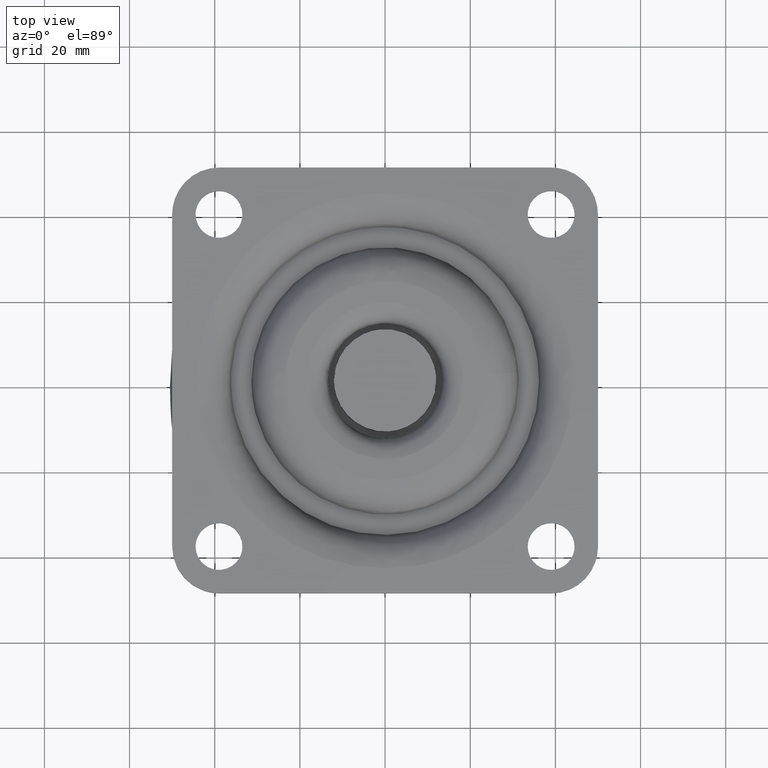
[diagram: clean part render]
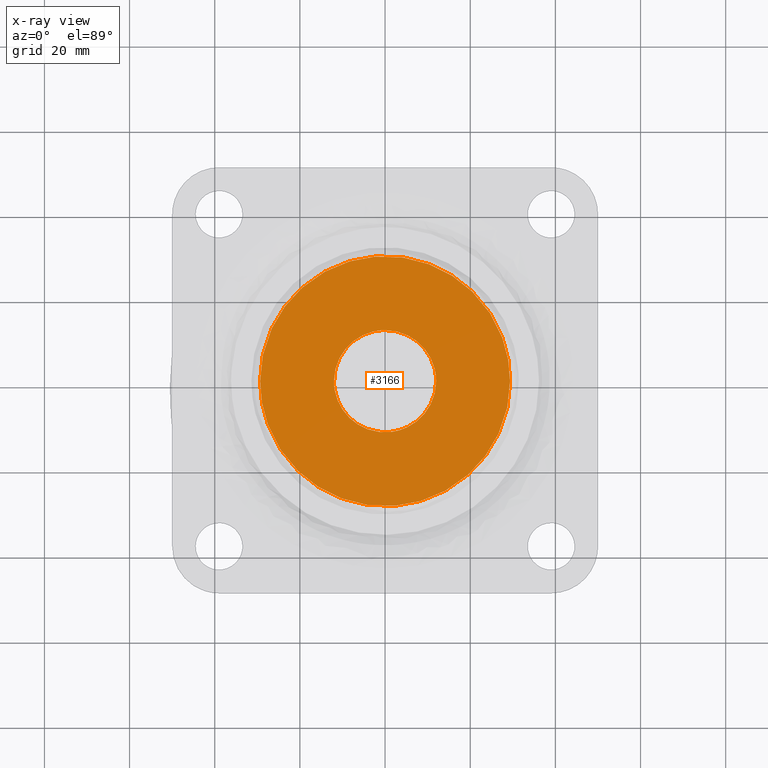
[diagram: x-ray — body ghosted, one internal face saturated and labeled with its STEP entity id]
A machine part, top view, then the same camera in x-ray: the body is ghosted and one INTERNAL B-rep face — a face not visible from any outside direction — is saturated and labeled: STEP entity #3166.
In plain terms, the highlighted face is a freeform B-spline surface patch.
Its self-contained STEP definition (entity closure, byte-faithful):
#2815=CARTESIAN_POINT('',(-0.104718426041867,11.999543076769720,-11.722076999999940));
#2816=VERTEX_POINT('',#2815);
#2822=CARTESIAN_POINT('',(12.0,1.989520E-013,-11.722076999999940));
#2823=VERTEX_POINT('',#2822);
#2824=CARTESIAN_POINT('',(-0.104718426041867,11.999543076769720,-11.722076999999935));
#2825=CARTESIAN_POINT('',(-0.052360209909803,12.000000000000201,-11.722076999999944));
#2826=CARTESIAN_POINT('',(-2.436378E-029,12.000000000000201,-11.722076999999940));
#2827=CARTESIAN_POINT('',(12.0,12.000000000000199,-11.722076999999942));
#2828=CARTESIAN_POINT('',(12.0,1.989520E-013,-11.722076999999940));
#2836=(BOUNDED_CURVE()B_SPLINE_CURVE(2,(#2824,#2825,#2826,#2827,#2828),.UNSPECIFIED.,.F.,.U.)B_SPLINE_CURVE_WITH_KNOTS((3,2,3),(0.248460105663211,0.250000000000000,0.500000000000000),.UNSPECIFIED.)CURVE()GEOMETRIC_REPRESENTATION_ITEM()RATIONAL_B_SPLINE_CURVE((0.996414028096235,0.998195901564261,1.0,0.707106781186548,1.0))REPRESENTATION_ITEM(''));
#2837=EDGE_CURVE('',#2816,#2823,#2836,.T.);
#2839=CARTESIAN_POINT('',(1.489528711875742,-11.907195480735110,-11.722076999999940));
#2840=VERTEX_POINT('',#2839);
#2841=CARTESIAN_POINT('',(12.0,1.989520E-013,-11.722076999999940));
#2842=CARTESIAN_POINT('',(12.000000000000002,-10.592389758068609,-11.722076999999942));
#2843=CARTESIAN_POINT('',(1.489528711875742,-11.907195480735114,-11.722076999999937));
#2851=(BOUNDED_CURVE()B_SPLINE_CURVE(2,(#2841,#2842,#2843),.UNSPECIFIED.,.F.,.U.)B_SPLINE_CURVE_WITH_KNOTS((3,3),(0.500000000000000,0.728526174607145),.UNSPECIFIED.)CURVE()GEOMETRIC_REPRESENTATION_ITEM()RATIONAL_B_SPLINE_CURVE((1.0,0.732264932544753,0.954005631279374))REPRESENTATION_ITEM(''));
#2852=EDGE_CURVE('',#2823,#2840,#2851,.T.);
#2902=CARTESIAN_POINT('',(-12.0,1.989520E-013,-11.722076999999940));
#2903=VERTEX_POINT('',#2902);
#2904=CARTESIAN_POINT('',(1.489528711875742,-11.907195480735114,-11.722076999999937));
#2905=CARTESIAN_POINT('',(0.747655431056894,-11.999999999999803,-11.722076999999937));
#2906=CARTESIAN_POINT('',(-2.436378E-029,-11.999999999999799,-11.722076999999940));
#2907=CARTESIAN_POINT('',(-12.0,-11.999999999999799,-11.722076999999942));
#2908=CARTESIAN_POINT('',(-12.0,1.989520E-013,-11.722076999999940));
#2916=(BOUNDED_CURVE()B_SPLINE_CURVE(2,(#2904,#2905,#2906,#2907,#2908),.UNSPECIFIED.,.F.,.U.)B_SPLINE_CURVE_WITH_KNOTS((3,2,3),(0.728526174607145,0.750000000000000,1.0),.UNSPECIFIED.)CURVE()GEOMETRIC_REPRESENTATION_ITEM()RATIONAL_B_SPLINE_CURVE((0.954005631279374,0.974841848641794,1.0,0.707106781186548,1.0))REPRESENTATION_ITEM(''));
#2917=EDGE_CURVE('',#2840,#2903,#2916,.T.);
#2919=CARTESIAN_POINT('',(-12.0,1.989520E-013,-11.722076999999940));
#2920=CARTESIAN_POINT('',(-12.0,11.895734527018227,-11.722076999999940));
#2921=CARTESIAN_POINT('',(-0.104718426041867,11.999543076769722,-11.722076999999938));
#2929=(BOUNDED_CURVE()B_SPLINE_CURVE(2,(#2919,#2920,#2921),.UNSPECIFIED.,.F.,.U.)B_SPLINE_CURVE_WITH_KNOTS((3,3),(0.0,0.248460105663211),.UNSPECIFIED.)CURVE()GEOMETRIC_REPRESENTATION_ITEM()RATIONAL_B_SPLINE_CURVE((1.0,0.708910879622287,0.996414028096235))REPRESENTATION_ITEM(''));
#2930=EDGE_CURVE('',#2903,#2816,#2929,.T.);
#2984=CARTESIAN_POINT('',(-2.303417455449584,29.267693781692671,-11.722075999998200));
#2985=VERTEX_POINT('',#2984);
#2991=CARTESIAN_POINT('',(-29.358195299999998,9.685118E-016,-11.722075999999980));
#2992=VERTEX_POINT('',#2991);
#2993=CARTESIAN_POINT('',(-29.358195299999998,9.685118E-016,-11.722075999999980));
#2994=CARTESIAN_POINT('',(-29.358195299999998,27.138436587546021,-11.722075999999976));
#2995=CARTESIAN_POINT('',(-2.303417455449583,29.267693781692664,-11.722075999998198));
#3003=(BOUNDED_CURVE()B_SPLINE_CURVE(2,(#2993,#2994,#2995),.UNSPECIFIED.,.F.,.U.)B_SPLINE_CURVE_WITH_KNOTS((3,3),(0.0,0.236331300632650),.UNSPECIFIED.)CURVE()GEOMETRIC_REPRESENTATION_ITEM()RATIONAL_B_SPLINE_CURVE((1.0,0.723120658605334,0.969723356171570))REPRESENTATION_ITEM(''));
#3004=EDGE_CURVE('',#2992,#2985,#3003,.T.);
#3006=CARTESIAN_POINT('',(2.303417455449586,-29.267693781692660,-11.722075999998200));
#3007=VERTEX_POINT('',#3006);
#3008=CARTESIAN_POINT('',(2.303417455449586,-29.267693781692667,-11.722075999998200));
#3009=CARTESIAN_POINT('',(1.153486634899141,-29.358195300000006,-11.722075999999984));
#3010=CARTESIAN_POINT('',(0.0,-29.358195299999998,-11.722075999999980));
#3011=CARTESIAN_POINT('',(-29.358195300000002,-29.358195300000002,-11.722075999999978));
#3012=CARTESIAN_POINT('',(-29.358195299999998,9.685118E-016,-11.722075999999980));
#3020=(BOUNDED_CURVE()B_SPLINE_CURVE(2,(#3008,#3009,#3010,#3011,#3012),.UNSPECIFIED.,.F.,.U.)B_SPLINE_CURVE_WITH_KNOTS((3,2,3),(0.736331300632649,0.750000000000000,1.0),.UNSPECIFIED.)CURVE()GEOMETRIC_REPRESENTATION_ITEM()RATIONAL_B_SPLINE_CURVE((0.969723356171570,0.983986122581213,1.0,0.707106781186548,1.0))REPRESENTATION_ITEM(''));
#3021=EDGE_CURVE('',#3007,#2992,#3020,.T.);
#3097=CARTESIAN_POINT('',(29.358195299999998,9.685118E-016,-11.722075999999980));
#3098=VERTEX_POINT('',#3097);
#3099=CARTESIAN_POINT('',(29.358195299999998,9.685118E-016,-11.722075999999980));
#3100=CARTESIAN_POINT('',(29.358195300000002,-27.138436587545847,-11.722075999999978));
#3101=CARTESIAN_POINT('',(2.303417455449586,-29.267693781692664,-11.722075999998204));
#3109=(BOUNDED_CURVE()B_SPLINE_CURVE(2,(#3099,#3100,#3101),.UNSPECIFIED.,.F.,.U.)B_SPLINE_CURVE_WITH_KNOTS((3,3),(0.500000000000000,0.736331300632648),.UNSPECIFIED.)CURVE()GEOMETRIC_REPRESENTATION_ITEM()RATIONAL_B_SPLINE_CURVE((1.0,0.723120658605336,0.969723356171568))REPRESENTATION_ITEM(''));
#3110=EDGE_CURVE('',#3098,#3007,#3109,.T.);
#3112=CARTESIAN_POINT('',(-2.303417455449583,29.267693781692664,-11.722075999998198));
#3113=CARTESIAN_POINT('',(-1.153486634899138,29.358195300000002,-11.722075999999984));
#3114=CARTESIAN_POINT('',(0.0,29.358195299999998,-11.722075999999980));
#3115=CARTESIAN_POINT('',(29.358195300000002,29.358195300000002,-11.722075999999978));
#3116=CARTESIAN_POINT('',(29.358195299999998,9.685118E-016,-11.722075999999980));
#3124=(BOUNDED_CURVE()B_SPLINE_CURVE(2,(#3112,#3113,#3114,#3115,#3116),.UNSPECIFIED.,.F.,.U.)B_SPLINE_CURVE_WITH_KNOTS((3,2,3),(0.236331300632649,0.250000000000000,0.500000000000000),.UNSPECIFIED.)CURVE()GEOMETRIC_REPRESENTATION_ITEM()RATIONAL_B_SPLINE_CURVE((0.969723356171570,0.983986122581213,1.0,0.707106781186548,1.0))REPRESENTATION_ITEM(''));
#3125=EDGE_CURVE('',#2985,#3098,#3124,.T.);
#3149=CARTESIAN_POINT('',(32.291078135702591,-32.282115638071538,-11.722076999999979));
#3150=CARTESIAN_POINT('',(-32.291076035840817,-32.282115638071538,-11.722076999999979));
#3151=CARTESIAN_POINT('',(32.291078135702591,32.282114588140651,-11.722076999999979));
#3152=CARTESIAN_POINT('',(-32.291076035840817,32.282114588140651,-11.722076999999979));
#3153=B_SPLINE_SURFACE_WITH_KNOTS('',1,1,((#3149,#3151),(#3150,#3152)),.UNSPECIFIED.,.F.,.F.,.U.,(2,2),(2,2),(0.0,64.582154171543408),(0.0,64.564230226212189),.UNSPECIFIED.);
#3154=ORIENTED_EDGE('',*,*,#3004,.T.);
#3155=ORIENTED_EDGE('',*,*,#3125,.T.);
#3156=ORIENTED_EDGE('',*,*,#3110,.T.);
#3157=ORIENTED_EDGE('',*,*,#3021,.T.);
#3158=EDGE_LOOP('',(#3154,#3155,#3156,#3157));
#3159=FACE_OUTER_BOUND('',#3158,.T.);
#3160=ORIENTED_EDGE('',*,*,#2930,.F.);
#3161=ORIENTED_EDGE('',*,*,#2917,.F.);
#3162=ORIENTED_EDGE('',*,*,#2852,.F.);
#3163=ORIENTED_EDGE('',*,*,#2837,.F.);
#3164=EDGE_LOOP('',(#3160,#3161,#3162,#3163));
#3165=FACE_BOUND('',#3164,.T.);
#3166=ADVANCED_FACE('',(#3159,#3165),#3153,.T.);